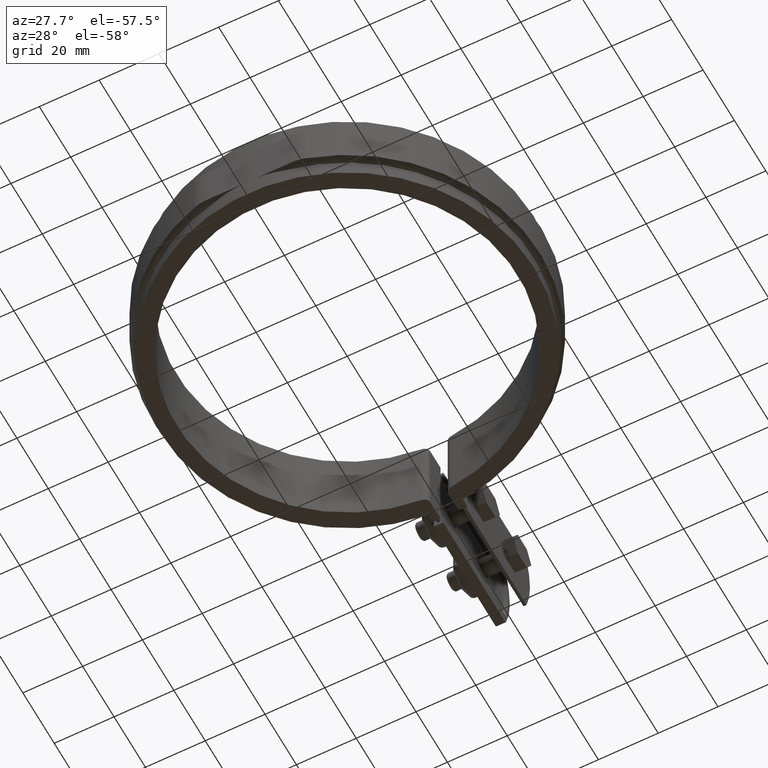
[diagram: clean part render]
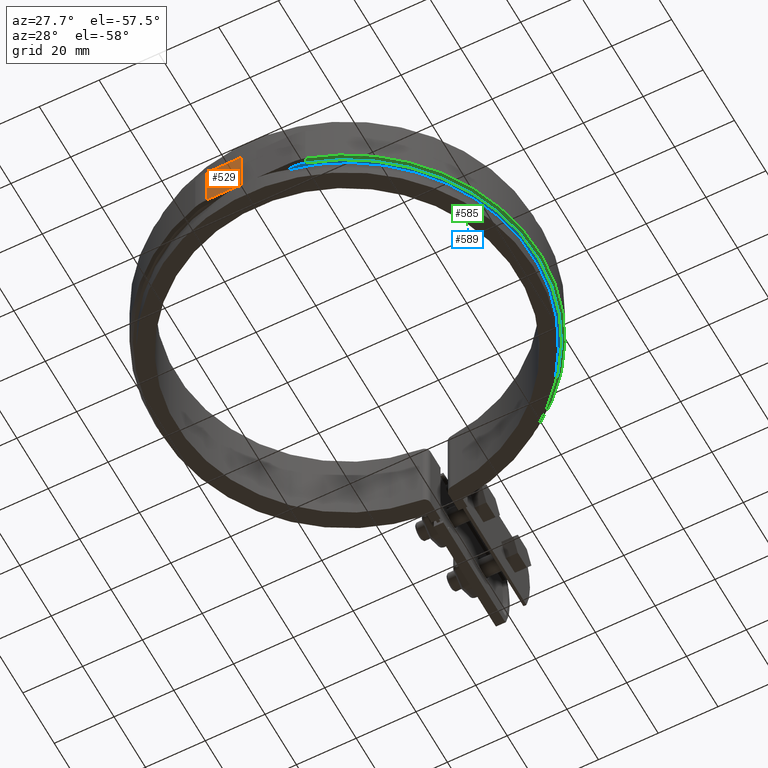
[diagram: same view with three faces highlighted in distinct colors, each labeled with its STEP entity id]
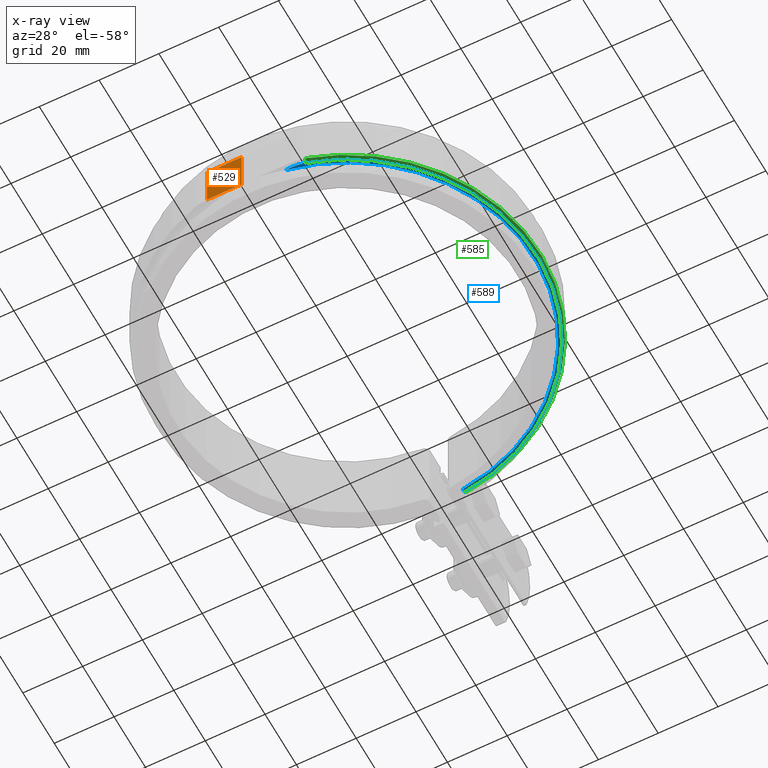
[diagram: x-ray of the same camera — body ghosted, the three highlighted faces saturated]
A machine part, auxiliary view with three faces highlighted in distinct colors.
The next image is the same camera in x-ray (body ghosted, the three faces saturated) — at least one of them is partly hidden behind the body in this view.
Their STEP definitions:

[orange] entity #529 — the highlighted planar face has unit normal (-0, -1, 0).
#529 = ADVANCED_FACE( '', ( #970 ), #971, .T. );
#970 = FACE_OUTER_BOUND( '', #2013, .T. );
#971 = PLANE( '', #2014 );
#2013 = EDGE_LOOP( '', ( #4731, #4732, #4733, #4734 ) );
#2014 = AXIS2_PLACEMENT_3D( '', #4735, #4736, #4737 );
#4731 = ORIENTED_EDGE( '', *, *, #7282, .F. );
#4732 = ORIENTED_EDGE( '', *, *, #7283, .T. );
#4733 = ORIENTED_EDGE( '', *, *, #7284, .T. );
#4734 = ORIENTED_EDGE( '', *, *, #7285, .T. );
#4735 = CARTESIAN_POINT( '', ( -14.0977835137301, -62.4500000000000, -8.50000000000000 ) );
#4736 = DIRECTION( '', ( -1.38777878078145E-017, -1.00000000000000, 0.000000000000000 ) );
#4737 = DIRECTION( '', ( -1.00000000000000, 1.38777878078145E-017, 0.000000000000000 ) );
#7282 = EDGE_CURVE( '', #8418, #8419, #8420, .T. );
#7283 = EDGE_CURVE( '', #8418, #8421, #8422, .T. );
#7284 = EDGE_CURVE( '', #8421, #8423, #8424, .T. );
#7285 = EDGE_CURVE( '', #8423, #8419, #8425, .F. );
#8418 = VERTEX_POINT( '', #12005 );
#8419 = VERTEX_POINT( '', #12006 );
#8420 = LINE( '', #12007, #12008 );
#8421 = VERTEX_POINT( '', #12009 );
#8422 = LINE( '', #12010, #12011 );
#8423 = VERTEX_POINT( '', #12012 );
#8424 = LINE( '', #12013, #12014 );
#8425 = LINE( '', #12015, #12016 );
#12005 = CARTESIAN_POINT( '', ( -14.0977835137301, -62.4500000000000, -7.50000000000000 ) );
#12006 = CARTESIAN_POINT( '', ( -14.0977835137301, -62.4500000000000, 7.50000000000000 ) );
#12007 = CARTESIAN_POINT( '', ( -14.0977835137301, -62.4500000000000, -8.50000000000000 ) );
#12008 = VECTOR( '', #14156, 1000.00000000000 );
#12009 = CARTESIAN_POINT( '', ( -2.50000000000001, -62.4500000000000, -7.50000000000000 ) );
#12010 = CARTESIAN_POINT( '', ( -14.0977835137301, -62.4500000000000, -7.50000000000000 ) );
#12011 = VECTOR( '', #14157, 1000.00000000000 );
#12012 = CARTESIAN_POINT( '', ( -2.50000000000001, -62.4500000000000, 7.50000000000001 ) );
#12013 = CARTESIAN_POINT( '', ( -2.50000000000001, -62.4500000000000, -8.50000000000000 ) );
#12014 = VECTOR( '', #14158, 1000.00000000000 );
#12015 = CARTESIAN_POINT( '', ( -14.0977835137301, -62.4500000000000, 7.50000000000000 ) );
#12016 = VECTOR( '', #14159, 1000.00000000000 );
#14156 = DIRECTION( '', ( 0.000000000000000, 0.000000000000000, 1.00000000000000 ) );
#14157 = DIRECTION( '', ( 1.00000000000000, -1.38777878078145E-017, 6.10103479447368E-032 ) );
#14158 = DIRECTION( '', ( 0.000000000000000, 0.000000000000000, 1.00000000000000 ) );
#14159 = DIRECTION( '', ( 1.00000000000000, -1.38777878078145E-017, -3.92209379644736E-032 ) );

[blue] entity #589 — the highlighted planar face has unit normal (0, 0, 1).
#589 = ADVANCED_FACE( '', ( #1092 ), #1093, .F. );
#1092 = FACE_OUTER_BOUND( '', #2411, .T. );
#1093 = PLANE( '', #2412 );
#2411 = EDGE_LOOP( '', ( #5245, #5246, #5247, #5248, #5249 ) );
#2412 = AXIS2_PLACEMENT_3D( '', #5250, #5251, #5252 );
#5245 = ORIENTED_EDGE( '', *, *, #7337, .T. );
#5246 = ORIENTED_EDGE( '', *, *, #7207, .T. );
#5247 = ORIENTED_EDGE( '', *, *, #7371, .F. );
#5248 = ORIENTED_EDGE( '', *, *, #7399, .F. );
#5249 = ORIENTED_EDGE( '', *, *, #7411, .T. );
#5250 = CARTESIAN_POINT( '', ( 8.67361737988404E-016, 1.38777878078145E-014, -8.50000000000000 ) );
#5251 = DIRECTION( '', ( 0.000000000000000, 0.000000000000000, 1.00000000000000 ) );
#5252 = DIRECTION( '', ( 1.00000000000000, 0.000000000000000, 0.000000000000000 ) );
#7207 = EDGE_CURVE( '', #8269, #8273, #8275, .F. );
#7337 = EDGE_CURVE( '', #8502, #8269, #8505, .F. );
#7371 = EDGE_CURVE( '', #8554, #8273, #8556, .F. );
#7399 = EDGE_CURVE( '', #8595, #8554, #8597, .T. );
#7411 = EDGE_CURVE( '', #8595, #8502, #8611, .F. );
#8269 = VERTEX_POINT( '', #11357 );
#8273 = VERTEX_POINT( '', #11363 );
#8275 = LINE( '', #11365, #11366 );
#8502 = VERTEX_POINT( '', #12205 );
#8505 = CIRCLE( '', #12209, 14.0000000000000 );
#8554 = VERTEX_POINT( '', #12318 );
#8556 = CIRCLE( '', #12321, 62.5000000000000 );
#8595 = VERTEX_POINT( '', #12429 );
#8597 = LINE( '', #12434, #12435 );
#8611 = CIRCLE( '', #12461, 63.5000000000000 );
#11357 = CARTESIAN_POINT( '', ( 14.0977835137301, -61.4500000000000, -8.50000000000000 ) );
#11363 = CARTESIAN_POINT( '', ( 11.4082207201649, -61.4500000000000, -8.50000000000000 ) );
#11365 = CARTESIAN_POINT( '', ( 1.72015179877860E-015, -61.4500000000000, -8.50000000000000 ) );
#11366 = VECTOR( '', #14057, 1000.00000000000 );
#12205 = CARTESIAN_POINT( '', ( 18.0850354166032, -60.8702020202020, -8.50000000000000 ) );
#12209 = AXIS2_PLACEMENT_3D( '', #14212, #14213, #14214 );
#12318 = CARTESIAN_POINT( '', ( 6.00000000000000, 62.2113333726259, -8.50000000000000 ) );
#12321 = AXIS2_PLACEMENT_3D( '', #14265, #14266, #14267 );
#12429 = CARTESIAN_POINT( '', ( 6.00000000000000, 63.2158998986806, -8.50000000000000 ) );
#12434 = CARTESIAN_POINT( '', ( 6.00000000000000, 62.2113333726259, -8.50000000000000 ) );
#12435 = VECTOR( '', #14307, 1000.00000000000 );
#12461 = AXIS2_PLACEMENT_3D( '', #14320, #14321, #14322 );
#14057 = DIRECTION( '', ( 1.00000000000000, 1.38777878078144E-017, 0.000000000000000 ) );
#14212 = CARTESIAN_POINT( '', ( 14.0977835137301, -47.4500000000000, -8.50000000000000 ) );
#14213 = DIRECTION( '', ( 0.000000000000000, 0.000000000000000, 1.00000000000000 ) );
#14214 = DIRECTION( '', ( 1.00000000000000, 0.000000000000000, 0.000000000000000 ) );
#14265 = CARTESIAN_POINT( '', ( -8.67361737988404E-016, -6.93889390390723E-015, -8.50000000000000 ) );
#14266 = DIRECTION( '', ( 0.000000000000000, 0.000000000000000, 1.00000000000000 ) );
#14267 = DIRECTION( '', ( 1.00000000000000, 0.000000000000000, 0.000000000000000 ) );
#14307 = DIRECTION( '', ( -5.55111512312578E-017, -1.00000000000000, 0.000000000000000 ) );
#14320 = CARTESIAN_POINT( '', ( 8.67361737988404E-016, 1.38777878078145E-014, -8.50000000000000 ) );
#14321 = DIRECTION( '', ( 0.000000000000000, 0.000000000000000, 1.00000000000000 ) );
#14322 = DIRECTION( '', ( 1.00000000000000, 0.000000000000000, 0.000000000000000 ) );

[green] entity #585 — the highlighted conical surface has half-angle 45 deg.
#585 = ADVANCED_FACE( '', ( #1083 ), #1084, .T. );
#1083 = FACE_OUTER_BOUND( '', #2402, .T. );
#1084 = CONICAL_SURFACE( '', #2403, 63.5000000000000, 0.785398163397448 );
#2402 = EDGE_LOOP( '', ( #5213, #5214, #5215, #5216 ) );
#2403 = AXIS2_PLACEMENT_3D( '', #5217, #5218, #5219 );
#5213 = ORIENTED_EDGE( '', *, *, #7398, .F. );
#5214 = ORIENTED_EDGE( '', *, *, #7254, .F. );
#5215 = ORIENTED_EDGE( '', *, *, #7335, .F. );
#5216 = ORIENTED_EDGE( '', *, *, #7411, .F. );
#5217 = CARTESIAN_POINT( '', ( 8.67361737988404E-016, 1.38777878078145E-014, -8.50000000000000 ) );
#5218 = DIRECTION( '', ( 0.000000000000000, 0.000000000000000, 1.00000000000000 ) );
#5219 = DIRECTION( '', ( 1.00000000000000, 0.000000000000000, 0.000000000000000 ) );
#7254 = EDGE_CURVE( '', #8364, #8359, #8366, .T. );
#7335 = EDGE_CURVE( '', #8502, #8364, #8503, .T. );
#7398 = EDGE_CURVE( '', #8359, #8595, #8596, .F. );
#7411 = EDGE_CURVE( '', #8595, #8502, #8611, .F. );
#8359 = VERTEX_POINT( '', #11512 );
#8364 = VERTEX_POINT( '', #11518 );
#8366 = CIRCLE( '', #11521, 64.5000000000000 );
#8502 = VERTEX_POINT( '', #12205 );
#8503 = LINE( '', #12206, #12207 );
#8595 = VERTEX_POINT( '', #12429 );
#8596 = B_SPLINE_CURVE_WITH_KNOTS( '', 3, ( #12430, #12431, #12432, #12433 ), .UNSPECIFIED., .F., .F., ( 4, 4 ), ( 707.189954839528, 707.191385096574 ), .UNSPECIFIED. );
#8611 = CIRCLE( '', #12461, 63.5000000000000 );
#11512 = CARTESIAN_POINT( '', ( 6.00000000000000, 64.2203238858230, -7.50000000000000 ) );
#11518 = CARTESIAN_POINT( '', ( 18.3698391239513, -61.8287878787879, -7.49999999999998 ) );
#11521 = AXIS2_PLACEMENT_3D( '', #14130, #14131, #14132 );
#12205 = CARTESIAN_POINT( '', ( 18.0850354166032, -60.8702020202020, -8.50000000000000 ) );
#12206 = CARTESIAN_POINT( '', ( 18.0850354166032, -60.8702020202020, -8.50000000000000 ) );
#12207 = VECTOR( '', #14208, 1000.00000000000 );
#12429 = CARTESIAN_POINT( '', ( 6.00000000000000, 63.2158998986806, -8.50000000000000 ) );
#12430 = CARTESIAN_POINT( '', ( 6.00000000000000, 63.2158998986864, -8.49999999999419 ) );
#12431 = CARTESIAN_POINT( '', ( 6.00000000000000, 63.5507194971129, -8.16667839025806 ) );
#12432 = CARTESIAN_POINT( '', ( 6.00000000000000, 63.8855273121449, -7.83334487437941 ) );
#12433 = CARTESIAN_POINT( '', ( 6.00000000000000, 64.2203238858004, -7.50000000002248 ) );
#12461 = AXIS2_PLACEMENT_3D( '', #14320, #14321, #14322 );
#14130 = CARTESIAN_POINT( '', ( 8.67361737988404E-016, 1.38777878078145E-014, -7.50000000000000 ) );
#14131 = DIRECTION( '', ( 0.000000000000000, 0.000000000000000, 1.00000000000000 ) );
#14132 = DIRECTION( '', ( 1.00000000000000, 0.000000000000000, 0.000000000000000 ) );
#14208 = DIRECTION( '', ( 0.201386632772898, -0.677822560955589, 0.707106781186548 ) );
#14320 = CARTESIAN_POINT( '', ( 8.67361737988404E-016, 1.38777878078145E-014, -8.50000000000000 ) );
#14321 = DIRECTION( '', ( 0.000000000000000, 0.000000000000000, 1.00000000000000 ) );
#14322 = DIRECTION( '', ( 1.00000000000000, 0.000000000000000, 0.000000000000000 ) );